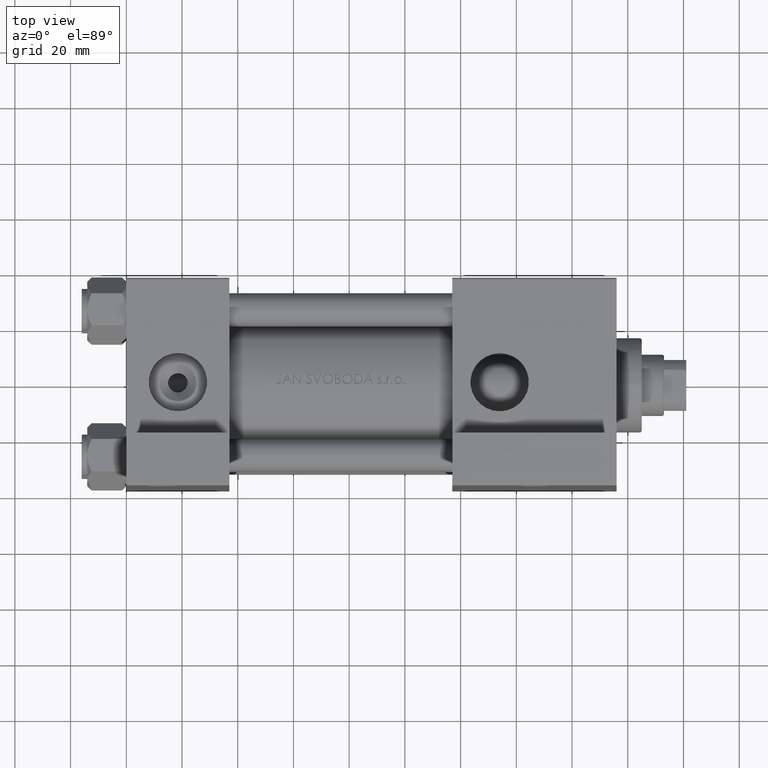
[diagram: clean part render]
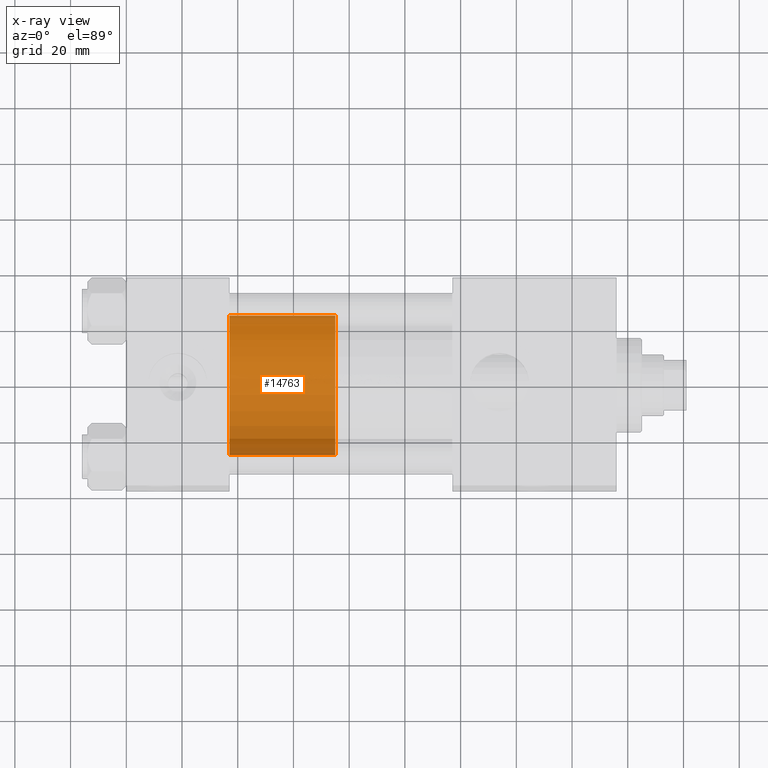
[diagram: x-ray — body ghosted, one internal face saturated and labeled with its STEP entity id]
A machine part, top view, then the same camera in x-ray: the body is ghosted and one INTERNAL B-rep face — a face not visible from any outside direction — is saturated and labeled: STEP entity #14763.
In plain terms, the highlighted cylindrical surface (partial cylindrical patch) has radius 25 mm, axis along (-1, 0, 0).
Its self-contained STEP definition (entity closure, byte-faithful):
#350 = CARTESIAN_POINT ( 'NONE',  ( -25.00000000000000000, 0.000000000000000000, 38.00000000000000000 ) ) ;
#2773 = AXIS2_PLACEMENT_3D ( 'NONE', #6854, #33522, #2864 ) ;
#2864 = DIRECTION ( 'NONE',  ( -1.000000000000000000, 0.000000000000000000, 0.000000000000000000 ) ) ;
#4518 = AXIS2_PLACEMENT_3D ( 'NONE', #31948, #17733, #32950 ) ;
#4718 = CARTESIAN_POINT ( 'NONE',  ( 25.00000000000000000, 3.061616997868383043E-15, 0.000000000000000000 ) ) ;
#4738 = VERTEX_POINT ( 'NONE', #4718 ) ;
#4836 = CARTESIAN_POINT ( 'NONE',  ( -25.00000000000000000, 0.000000000000000000, 0.000000000000000000 ) ) ;
#5729 = LINE ( 'NONE', #17683, #42834 ) ;
#5870 = ORIENTED_EDGE ( 'NONE', *, *, #20080, .F. ) ;
#6854 = CARTESIAN_POINT ( 'NONE',  ( 0.000000000000000000, 0.000000000000000000, 38.00000000000000000 ) ) ;
#7731 = CIRCLE ( 'NONE', #4518, 25.00000000000000000 ) ;
#12156 = DIRECTION ( 'NONE',  ( 1.000000000000000000, 0.000000000000000000, 0.000000000000000000 ) ) ;
#14763 = ADVANCED_FACE ( 'NONE', ( #22033 ), #37238, .T. ) ;
#17683 = CARTESIAN_POINT ( 'NONE',  ( 25.00000000000000000, 3.061616997868383043E-15, 38.00000000000000000 ) ) ;
#17733 = DIRECTION ( 'NONE',  ( 0.000000000000000000, 0.000000000000000000, 1.000000000000000000 ) ) ;
#18160 = CARTESIAN_POINT ( 'NONE',  ( 25.00000000000000000, 3.061616997868383043E-15, 38.00000000000000000 ) ) ;
#18938 = EDGE_CURVE ( 'NONE', #4738, #29613, #7731, .T. ) ;
#19417 = EDGE_LOOP ( 'NONE', ( #38545, #30897, #42817, #5870 ) ) ;
#20080 = EDGE_CURVE ( 'NONE', #40119, #29613, #23751, .T. ) ;
#22033 = FACE_OUTER_BOUND ( 'NONE', #19417, .T. ) ;
#22880 = EDGE_CURVE ( 'NONE', #32949, #4738, #5729, .T. ) ;
#23751 = LINE ( 'NONE', #350, #24441 ) ;
#24441 = VECTOR ( 'NONE', #26999, 1000.000000000000000 ) ;
#25403 = DIRECTION ( 'NONE',  ( -0.000000000000000000, -0.000000000000000000, -1.000000000000000000 ) ) ;
#26845 = AXIS2_PLACEMENT_3D ( 'NONE', #42554, #46290, #12156 ) ;
#26999 = DIRECTION ( 'NONE',  ( -0.000000000000000000, -0.000000000000000000, -1.000000000000000000 ) ) ;
#29613 = VERTEX_POINT ( 'NONE', #4836 ) ;
#30897 = ORIENTED_EDGE ( 'NONE', *, *, #22880, .T. ) ;
#31948 = CARTESIAN_POINT ( 'NONE',  ( 0.000000000000000000, 0.000000000000000000, 0.000000000000000000 ) ) ;
#32949 = VERTEX_POINT ( 'NONE', #18160 ) ;
#32950 = DIRECTION ( 'NONE',  ( 1.000000000000000000, 0.000000000000000000, 0.000000000000000000 ) ) ;
#33522 = DIRECTION ( 'NONE',  ( -0.000000000000000000, -0.000000000000000000, -1.000000000000000000 ) ) ;
#34511 = EDGE_CURVE ( 'NONE', #32949, #40119, #42741, .T. ) ;
#37238 = CYLINDRICAL_SURFACE ( 'NONE', #2773, 25.00000000000000000 ) ;
#38545 = ORIENTED_EDGE ( 'NONE', *, *, #34511, .F. ) ;
#40119 = VERTEX_POINT ( 'NONE', #41222 ) ;
#41222 = CARTESIAN_POINT ( 'NONE',  ( -25.00000000000000000, 0.000000000000000000, 38.00000000000000000 ) ) ;
#42554 = CARTESIAN_POINT ( 'NONE',  ( 0.000000000000000000, 0.000000000000000000, 38.00000000000000000 ) ) ;
#42741 = CIRCLE ( 'NONE', #26845, 25.00000000000000000 ) ;
#42817 = ORIENTED_EDGE ( 'NONE', *, *, #18938, .T. ) ;
#42834 = VECTOR ( 'NONE', #25403, 1000.000000000000000 ) ;
#46290 = DIRECTION ( 'NONE',  ( 0.000000000000000000, 0.000000000000000000, 1.000000000000000000 ) ) ;